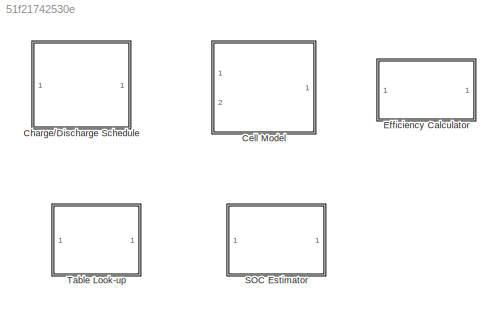
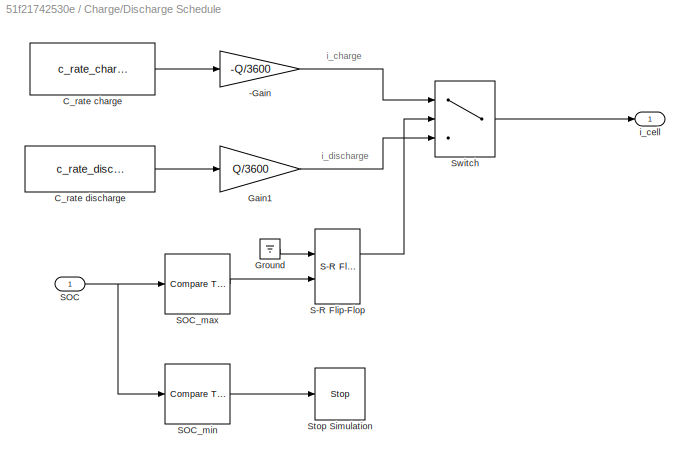
MODEL slx_51f21742530e
KIND library
CONFIG AbsTol = auto
CONFIG FixedStep = auto
CONFIG MaxStep = auto
CONFIG MinStep = auto
CONFIG RelTol = 1e-3
CONFIG SampleTimeConstraint = Unconstrained
CONFIG Solver = VariableStepAuto
CONFIG SolverMode = SingleTasking
CONFIG SolverName = VariableStepAuto
CONFIG StartTime = 0.0
CONFIG StopTime = 10.0
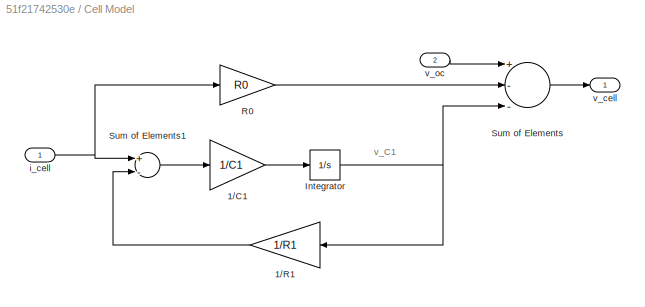
BLOCK [SubSystem] Cell Model
  Ports = [2, 1]
  RequestExecContextInheritance = off
BLOCK [Gain] Cell Model/1//C1
  Gain = 1/C1
  OutDataTypeStr = Inherit: Inherit via internal rule
  ParamDataTypeStr = Inherit: Inherit via internal rule
  SaturateOnIntegerOverflow = off
BLOCK [Gain] Cell Model/1//R1
  Gain = 1/R1
  OutDataTypeStr = Inherit: Inherit via internal rule
  ParamDataTypeStr = Inherit: Inherit via internal rule
  SaturateOnIntegerOverflow = off
BLOCK [Integrator] Cell Model/Integrator
  Ports = [1, 1]
BLOCK [Gain] Cell Model/R0
  Gain = R0
  OutDataTypeStr = Inherit: Inherit via internal rule
  ParamDataTypeStr = Inherit: Inherit via internal rule
  SaturateOnIntegerOverflow = off
BLOCK [Sum] Cell Model/Sum of Elements
  InputSameDT = off
  Inputs = +--
  OutDataTypeStr = Inherit: Inherit via internal rule
  Ports = [3, 1]
  SaturateOnIntegerOverflow = off
BLOCK [Sum] Cell Model/Sum of Elements1
  InputSameDT = off
  Inputs = +-
  OutDataTypeStr = Inherit: Inherit via internal rule
  Ports = [2, 1]
  SaturateOnIntegerOverflow = off
BLOCK [Inport] Cell Model/i_cell
  IconDisplay = Port number
BLOCK [Outport] Cell Model/v_cell
  IconDisplay = Port number
BLOCK [Inport] Cell Model/v_oc 
  IconDisplay = Port number
  Port = 2
BLOCK [SubSystem] Charge//Discharge Schedule
  Ports = [1, 1]
  RequestExecContextInheritance = off
BLOCK [Gain] Charge//Discharge Schedule/-Gain
  Gain = -Q/3600
  OutDataTypeStr = Inherit: Inherit via internal rule
  ParamDataTypeStr = Inherit: Inherit via internal rule
  SaturateOnIntegerOverflow = off
BLOCK [Constant] Charge//Discharge Schedule/C_rate charge
  Value = c_rate_charge
BLOCK [Constant] Charge//Discharge Schedule/C_rate discharge
  Value = c_rate_discharge
BLOCK [Gain] Charge//Discharge Schedule/Gain1
  Gain = Q/3600
  OutDataTypeStr = Inherit: Inherit via internal rule
  ParamDataTypeStr = Inherit: Inherit via internal rule
  SaturateOnIntegerOverflow = off
BLOCK [Ground] Charge//Discharge Schedule/Ground
BLOCK [Reference] Charge//Discharge Schedule/S-R Flip-Flop  REF=simulink_extras/Flip Flops/S-R
Flip-Flop
  Ports = [2, 2]
  SourceBlock = simulink_extras/Flip Flops/S-R\nFlip-Flop
  SourceType = SRFlipFlop
BLOCK [Inport] Charge//Discharge Schedule/SOC
  IconDisplay = Port number
BLOCK [Reference] Charge//Discharge Schedule/SOC_max   REF=simulink/Logic and Bit
Operations/Compare
To Constant
  Ports = [1, 1]
  SourceBlock = simulink/Logic and Bit\nOperations/Compare\nTo Constant
  SourceType = Compare To Constant
BLOCK [Reference] Charge//Discharge Schedule/SOC_min  REF=simulink/Logic and Bit
Operations/Compare
To Constant
  Ports = [1, 1]
  SourceBlock = simulink/Logic and Bit\nOperations/Compare\nTo Constant
  SourceType = Compare To Constant
BLOCK [Stop] Charge//Discharge Schedule/Stop Simulation
BLOCK [Switch] Charge//Discharge Schedule/Switch
  Criteria = u2 > Threshold
  InputSameDT = off
  SaturateOnIntegerOverflow = off
BLOCK [Outport] Charge//Discharge Schedule/i_cell 
  IconDisplay = Port number
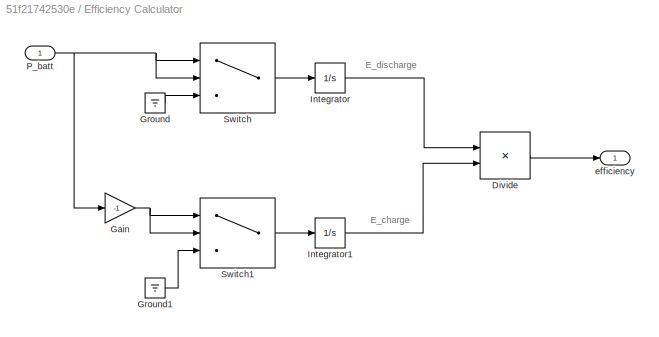
BLOCK [SubSystem] Efficiency Calculator
  Ports = [1, 1]
  RequestExecContextInheritance = off
BLOCK [Product] Efficiency Calculator/Divide
  InputSameDT = off
  Inputs = */
  OutDataTypeStr = Inherit: Inherit via internal rule
  Ports = [2, 1]
  RndMeth = Floor
  SaturateOnIntegerOverflow = off
BLOCK [Gain] Efficiency Calculator/Gain
  Gain = -1
  OutDataTypeStr = Inherit: Inherit via internal rule
  ParamDataTypeStr = Inherit: Inherit via internal rule
  SaturateOnIntegerOverflow = off
BLOCK [Ground] Efficiency Calculator/Ground
BLOCK [Ground] Efficiency Calculator/Ground1
BLOCK [Integrator] Efficiency Calculator/Integrator
  Ports = [1, 1]
BLOCK [Integrator] Efficiency Calculator/Integrator1
  Ports = [1, 1]
BLOCK [Inport] Efficiency Calculator/P_batt
  IconDisplay = Port number
BLOCK [Switch] Efficiency Calculator/Switch
  InputSameDT = off
  SaturateOnIntegerOverflow = off
BLOCK [Switch] Efficiency Calculator/Switch1
  InputSameDT = off
  SaturateOnIntegerOverflow = off
BLOCK [Outport] Efficiency Calculator/efficiency
  IconDisplay = Port number
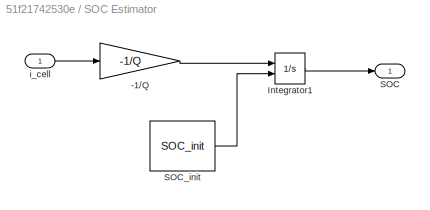
BLOCK [SubSystem] SOC Estimator
  Ports = [1, 1]
  RequestExecContextInheritance = off
BLOCK [Gain] SOC Estimator/-1//Q
  Gain = -1/Q
  OutDataTypeStr = Inherit: Inherit via internal rule
  ParamDataTypeStr = Inherit: Inherit via internal rule
  SaturateOnIntegerOverflow = off
BLOCK [Integrator] SOC Estimator/Integrator1
  InitialConditionSource = external
  Ports = [2, 1]
BLOCK [Outport] SOC Estimator/SOC
  IconDisplay = Port number
BLOCK [Constant] SOC Estimator/SOC_init
  Value = SOC_init
BLOCK [Inport] SOC Estimator/i_cell
  IconDisplay = Port number
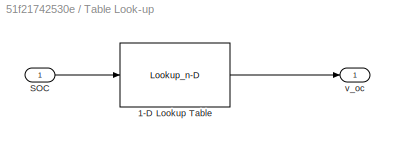
BLOCK [SubSystem] Table Look-up
  Ports = [1, 1]
  RequestExecContextInheritance = off
BLOCK [Lookup_n-D] Table Look-up/1-D Lookup Table
  BreakpointsForDimension1 = [0 0.1 0.25 0.5 0.75 0.9 1]
  NumberOfTableDimensions = 1
  Ports = [1, 1]
  RndMeth = Simplest
  Table = [ 3.51  3.57  3.63  3.71  3.93  4.08  4.19]
BLOCK [Inport] Table Look-up/SOC
  IconDisplay = Port number
BLOCK [Outport] Table Look-up/v_oc
  IconDisplay = Port number
ANNOTATION Cell Model: v_C1
ANNOTATION Charge//Discharge Schedule: i_charge
ANNOTATION Charge//Discharge Schedule: i_discharge
ANNOTATION Efficiency Calculator: E_charge
ANNOTATION Efficiency Calculator: E_discharge
LINE Cell Model/1//C1:1 -> Cell Model/Integrator:1
LINE Cell Model/1//R1:1 -> Cell Model/Sum of Elements1:2
NET Cell Model/Integrator:1 -> Cell Model/1//R1:1, Cell Model/Sum of Elements:3
LINE Cell Model/R0:1 -> Cell Model/Sum of Elements:2
LINE Cell Model/Sum of Elements1:1 -> Cell Model/1//C1:1
LINE Cell Model/Sum of Elements:1 -> Cell Model/v_cell:1
NET Cell Model/i_cell:1 -> Cell Model/R0:1, Cell Model/Sum of Elements1:1
LINE Cell Model/v_oc :1 -> Cell Model/Sum of Elements:1
LINE Charge//Discharge Schedule/-Gain:1 -> Charge//Discharge Schedule/Switch:1
LINE Charge//Discharge Schedule/C_rate charge:1 -> Charge//Discharge Schedule/-Gain:1
LINE Charge//Discharge Schedule/C_rate discharge:1 -> Charge//Discharge Schedule/Gain1:1
LINE Charge//Discharge Schedule/Gain1:1 -> Charge//Discharge Schedule/Switch:3
LINE Charge//Discharge Schedule/Ground:1 -> Charge//Discharge Schedule/S-R Flip-Flop:1
LINE Charge//Discharge Schedule/S-R Flip-Flop:1 -> Charge//Discharge Schedule/Switch:2
NET Charge//Discharge Schedule/SOC:1 -> Charge//Discharge Schedule/SOC_max :1, Charge//Discharge Schedule/SOC_min:1
LINE Charge//Discharge Schedule/SOC_max :1 -> Charge//Discharge Schedule/S-R Flip-Flop:2
LINE Charge//Discharge Schedule/SOC_min:1 -> Charge//Discharge Schedule/Stop Simulation:1
LINE Charge//Discharge Schedule/Switch:1 -> Charge//Discharge Schedule/i_cell :1
LINE Efficiency Calculator/Divide:1 -> Efficiency Calculator/efficiency:1
NET Efficiency Calculator/Gain:1 -> Efficiency Calculator/Switch1:1, Efficiency Calculator/Switch1:2
LINE Efficiency Calculator/Ground1:1 -> Efficiency Calculator/Switch1:3
LINE Efficiency Calculator/Ground:1 -> Efficiency Calculator/Switch:3
LINE Efficiency Calculator/Integrator1:1 -> Efficiency Calculator/Divide:2
LINE Efficiency Calculator/Integrator:1 -> Efficiency Calculator/Divide:1
NET Efficiency Calculator/P_batt:1 -> Efficiency Calculator/Gain:1, Efficiency Calculator/Switch:1, Efficiency Calculator/Switch:2
LINE Efficiency Calculator/Switch1:1 -> Efficiency Calculator/Integrator1:1
LINE Efficiency Calculator/Switch:1 -> Efficiency Calculator/Integrator:1
LINE SOC Estimator/-1//Q:1 -> SOC Estimator/Integrator1:1
LINE SOC Estimator/Integrator1:1 -> SOC Estimator/SOC:1
LINE SOC Estimator/SOC_init:1 -> SOC Estimator/Integrator1:2
LINE SOC Estimator/i_cell:1 -> SOC Estimator/-1//Q:1
LINE Table Look-up/1-D Lookup Table:1 -> Table Look-up/v_oc:1
LINE Table Look-up/SOC:1 -> Table Look-up/1-D Lookup Table:1
note: NET lines group one-source signal fan-out (src -> all destinations, sorted); 1:1 wires keep LINE
